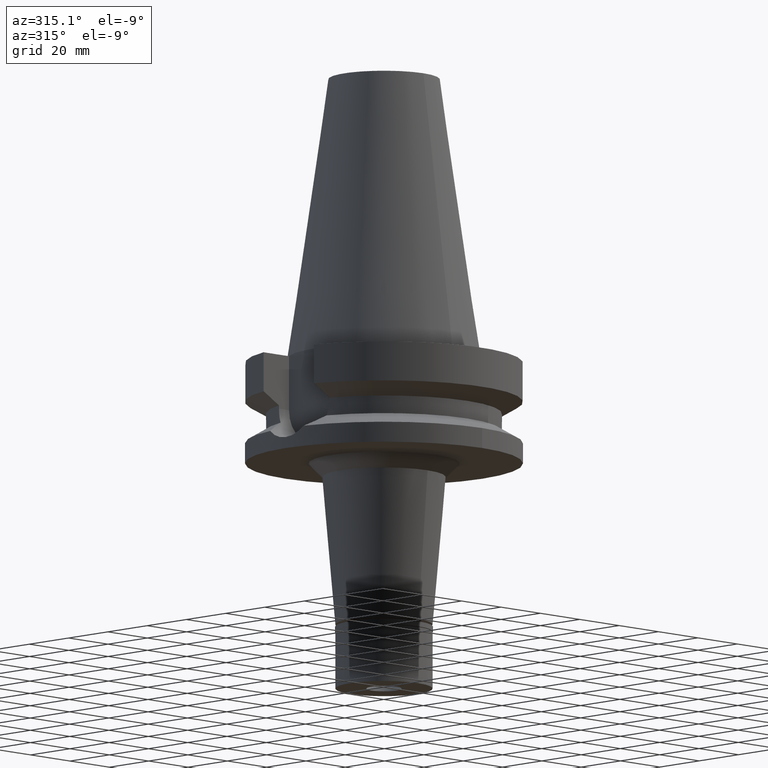
[diagram: clean part render]
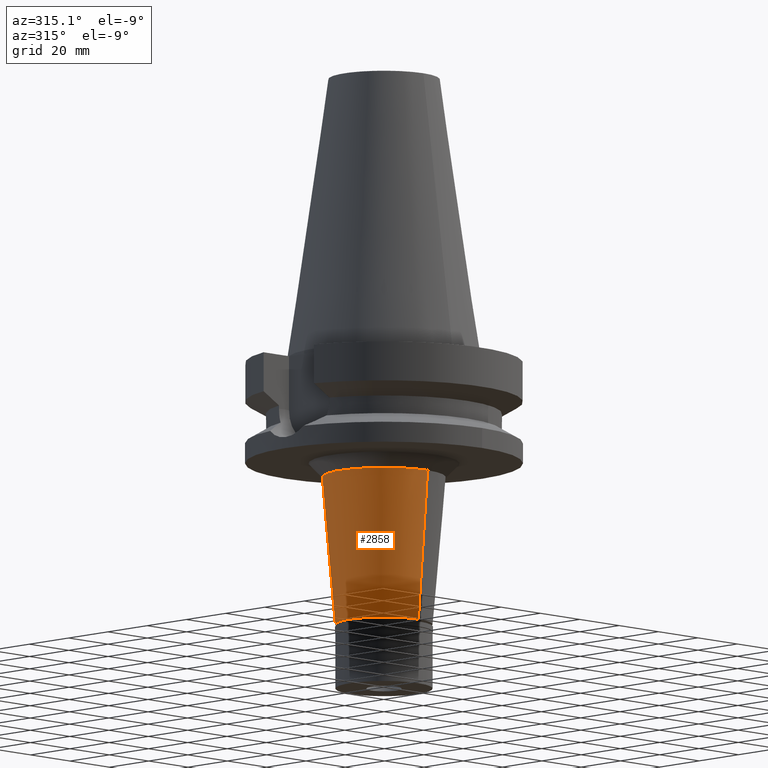
[diagram: same view with one face highlighted and labeled with its STEP entity id]
A machine part, auxiliary view. The second image highlights one B-rep face of the part: STEP entity #2858.
In plain terms, the highlighted conical surface has half-angle 5 deg.
Its self-contained STEP definition (entity closure, byte-faithful):
#168 = AXIS2_PLACEMENT_3D ( 'NONE', #866, #3078, #1310 ) ;
#179 = DIRECTION ( 'NONE',  ( 0.0000000000000000000, -0.08715574274764407992, -0.9961946980917467664 ) ) ;
#234 = CARTESIAN_POINT ( 'NONE',  ( 0.0000000000000000000, 22.19814123133999928, -43.00000000000000000 ) ) ;
#257 = LINE ( 'NONE', #745, #1347 ) ;
#262 = VECTOR ( 'NONE', #179, 1000.000000000000114 ) ;
#271 = CIRCLE ( 'NONE', #2626, 22.19814123133999928 ) ;
#323 = ORIENTED_EDGE ( 'NONE', *, *, #700, .F. ) ;
#343 = DIRECTION ( 'NONE',  ( 0.0000000000000000000, 0.0000000000000000000, 1.000000000000000000 ) ) ;
#364 = AXIS2_PLACEMENT_3D ( 'NONE', #867, #343, #1772 ) ;
#416 = DIRECTION ( 'NONE',  ( 0.0000000000000000000, -1.000000000000000000, 0.0000000000000000000 ) ) ;
#422 = CONICAL_SURFACE ( 'NONE', #168, 19.84907061566999786, 0.08726646259969973729 ) ;
#700 = EDGE_CURVE ( 'NONE', #2776, #2480, #257, .T. ) ;
#745 = CARTESIAN_POINT ( 'NONE',  ( 0.0000000000000000000, -22.19814123133999928, -43.00000000000000000 ) ) ;
#824 = ORIENTED_EDGE ( 'NONE', *, *, #1384, .T. ) ;
#866 = CARTESIAN_POINT ( 'NONE',  ( 0.0000000000000000000, 0.0000000000000000000, -69.84999999999999432 ) ) ;
#867 = CARTESIAN_POINT ( 'NONE',  ( 0.0000000000000000000, 0.0000000000000000000, -96.69999999999998863 ) ) ;
#1106 = FACE_OUTER_BOUND ( 'NONE', #2628, .T. ) ;
#1172 = ORIENTED_EDGE ( 'NONE', *, *, #1641, .T. ) ;
#1310 = DIRECTION ( 'NONE',  ( 0.0000000000000000000, 1.000000000000000000, 0.0000000000000000000 ) ) ;
#1347 = VECTOR ( 'NONE', #3167, 1000.000000000000114 ) ;
#1384 = EDGE_CURVE ( 'NONE', #2776, #1928, #271, .T. ) ;
#1439 = LINE ( 'NONE', #2416, #262 ) ;
#1446 = ORIENTED_EDGE ( 'NONE', *, *, #2584, .T. ) ;
#1641 = EDGE_CURVE ( 'NONE', #2811, #2480, #2718, .T. ) ;
#1772 = DIRECTION ( 'NONE',  ( 0.0000000000000000000, 1.000000000000000000, 0.0000000000000000000 ) ) ;
#1928 = VERTEX_POINT ( 'NONE', #234 ) ;
#2219 = CARTESIAN_POINT ( 'NONE',  ( 0.0000000000000000000, -22.19814123133999928, -43.00000000000000000 ) ) ;
#2323 = CARTESIAN_POINT ( 'NONE',  ( 0.0000000000000000000, 17.50000000000000000, -96.69999999999998863 ) ) ;
#2416 = CARTESIAN_POINT ( 'NONE',  ( 0.0000000000000000000, 22.19814123133999928, -43.00000000000000000 ) ) ;
#2480 = VERTEX_POINT ( 'NONE', #2646 ) ;
#2584 = EDGE_CURVE ( 'NONE', #1928, #2811, #1439, .T. ) ;
#2613 = CARTESIAN_POINT ( 'NONE',  ( 0.0000000000000000000, 0.0000000000000000000, -43.00000000000000000 ) ) ;
#2626 = AXIS2_PLACEMENT_3D ( 'NONE', #2613, #2903, #416 ) ;
#2628 = EDGE_LOOP ( 'NONE', ( #1172, #323, #824, #1446 ) ) ;
#2646 = CARTESIAN_POINT ( 'NONE',  ( 0.0000000000000000000, -17.50000000000000000, -96.69999999999998863 ) ) ;
#2718 = CIRCLE ( 'NONE', #364, 17.50000000000000000 ) ;
#2776 = VERTEX_POINT ( 'NONE', #2219 ) ;
#2811 = VERTEX_POINT ( 'NONE', #2323 ) ;
#2858 = ADVANCED_FACE ( 'NONE', ( #1106 ), #422, .T. ) ;
#2903 = DIRECTION ( 'NONE',  ( 0.0000000000000000000, 0.0000000000000000000, -1.000000000000000000 ) ) ;
#3078 = DIRECTION ( 'NONE',  ( 0.0000000000000000000, 0.0000000000000000000, 1.000000000000000000 ) ) ;
#3167 = DIRECTION ( 'NONE',  ( 0.0000000000000000000, 0.08715574274764407992, -0.9961946980917467664 ) ) ;